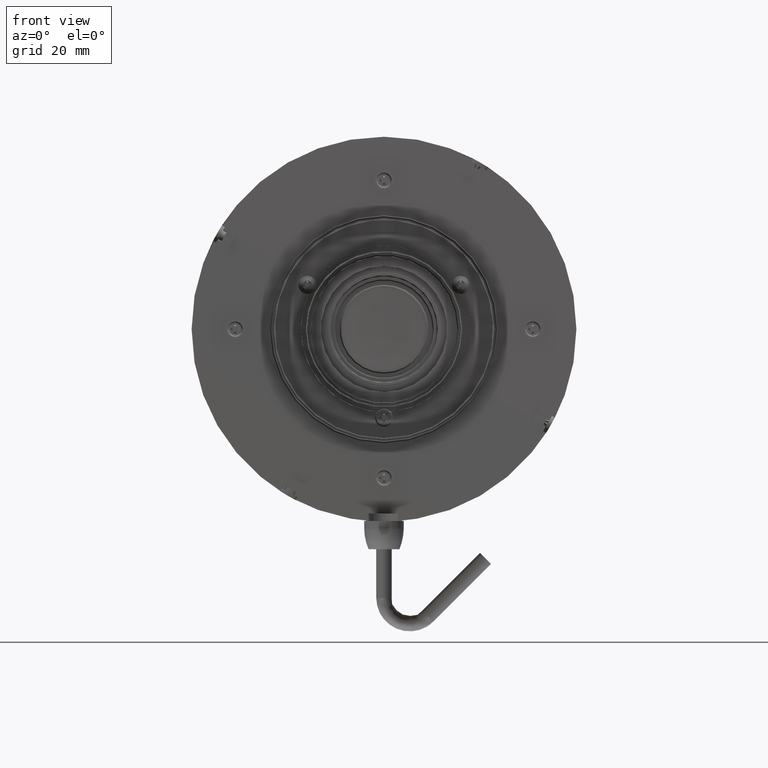
[diagram: clean part render]
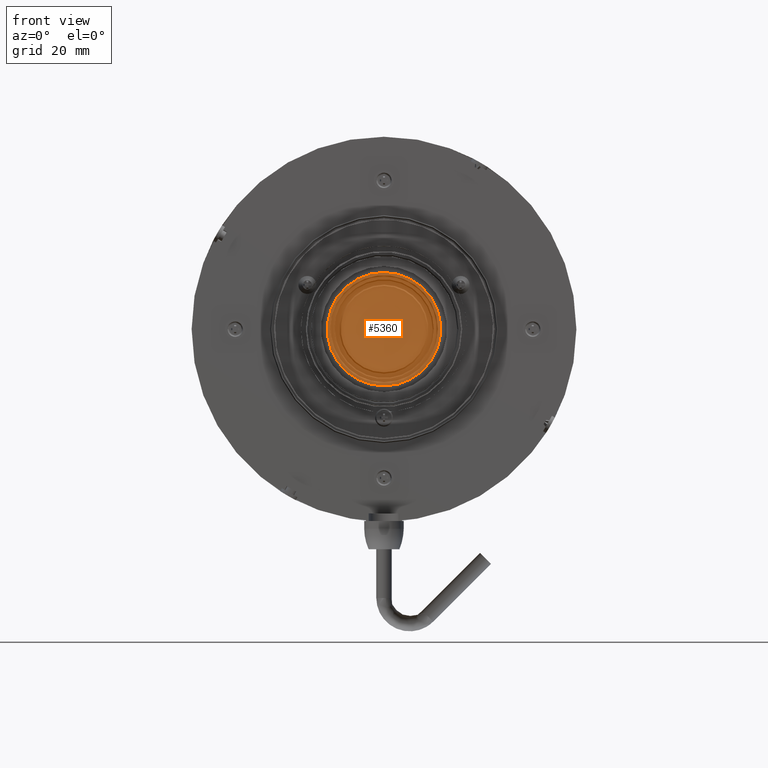
[diagram: same view with one face highlighted and labeled with its STEP entity id]
A machine part, front view. The second image highlights one B-rep face of the part: STEP entity #5360.
In plain terms, the highlighted toroidal blend (fillet) surface has major radius 0.0003 mm and minor (blend) radius 19.09 mm.
Its self-contained STEP definition (entity closure, byte-faithful):
#557 = AXIS2_PLACEMENT_3D ( 'NONE', #2358, #5136, #7185 ) ;
#1100 = AXIS2_PLACEMENT_3D ( 'NONE', #8551, #11333, #10423 ) ;
#1124 = FACE_OUTER_BOUND ( 'NONE', #7455, .T. ) ;
#2253 = TOROIDAL_SURFACE ( 'NONE', #1100, -0.0003009240710595129770, 19.08999999999980091 ) ;
#2358 = CARTESIAN_POINT ( 'NONE',  ( 0.000000000000000000, -74.68910310453659918, 9.146777104815737503E-15 ) ) ;
#4648 = ORIENTED_EDGE ( 'NONE', *, *, #9619, .T. ) ;
#5136 = DIRECTION ( 'NONE',  ( 0.000000000000000000, -1.000000000000000000, 1.224646799147350002E-16 ) ) ;
#5360 = ADVANCED_FACE ( 'NONE', ( #1124 ), #2253, .T. ) ;
#6825 = VERTEX_POINT ( 'NONE', #6885 ) ;
#6885 = CARTESIAN_POINT ( 'NONE',  ( 0.000000000000000000, -74.68910310453659918, -11.08401422524827851 ) ) ;
#7185 = DIRECTION ( 'NONE',  ( 0.000000000000000000, 0.000000000000000000, -1.000000000000000000 ) ) ;
#7455 = EDGE_LOOP ( 'NONE', ( #4648 ) ) ;
#8551 = CARTESIAN_POINT ( 'NONE',  ( 0.000000000000000000, -59.14670761122339826, 7.243349308885950689E-15 ) ) ;
#9619 = EDGE_CURVE ( 'NONE', #6825, #6825, #11752, .T. ) ;
#10423 = DIRECTION ( 'NONE',  ( 0.000000000000000000, -1.224646799147350002E-16, -1.000000000000000000 ) ) ;
#11333 = DIRECTION ( 'NONE',  ( 0.000000000000000000, -1.000000000000000000, 1.224646799147350002E-16 ) ) ;
#11752 = CIRCLE ( 'NONE', #557, 11.08401422524828739 ) ;